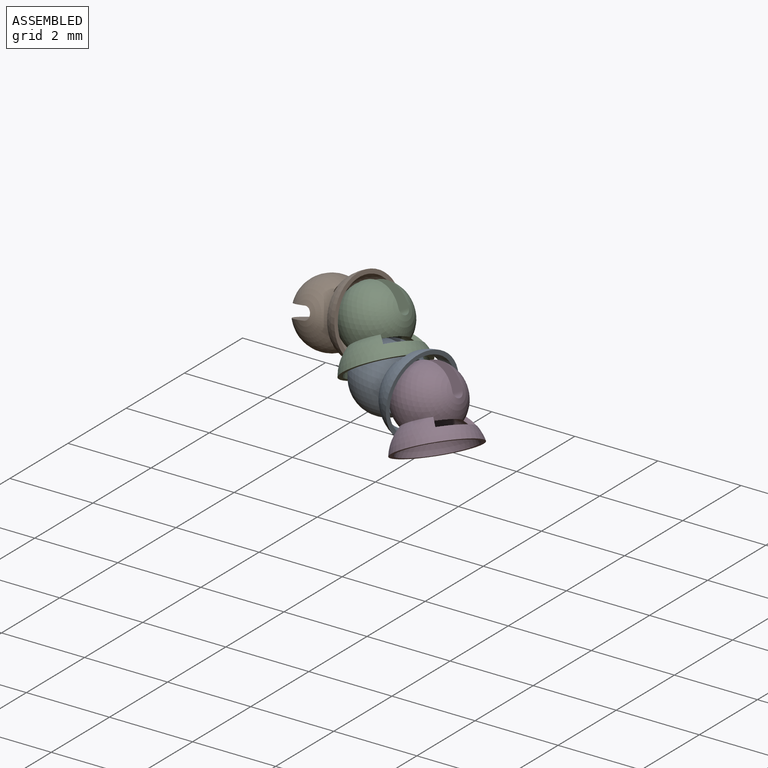
[diagram: assembled view]
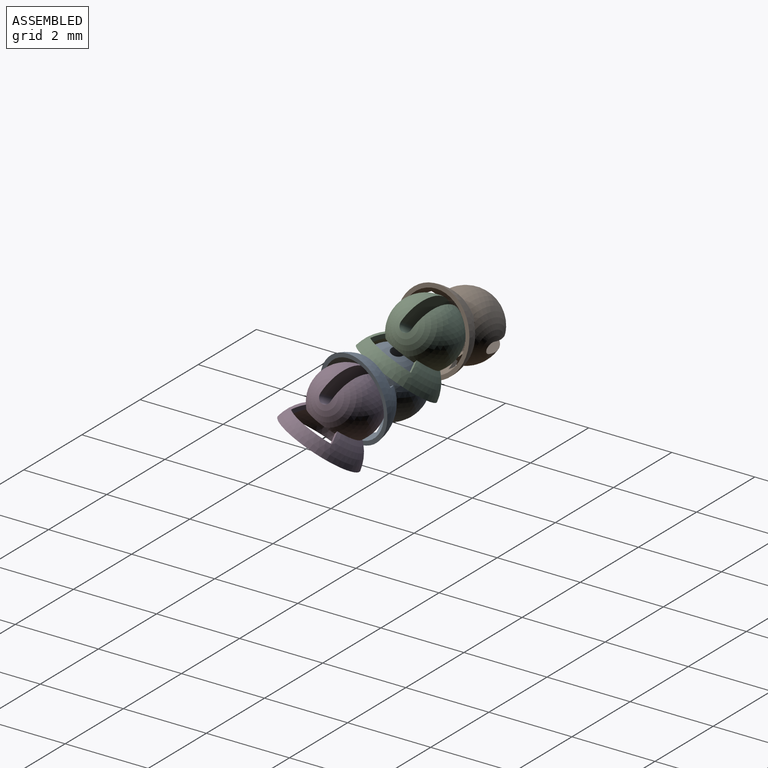
[diagram: assembled view, second angle]
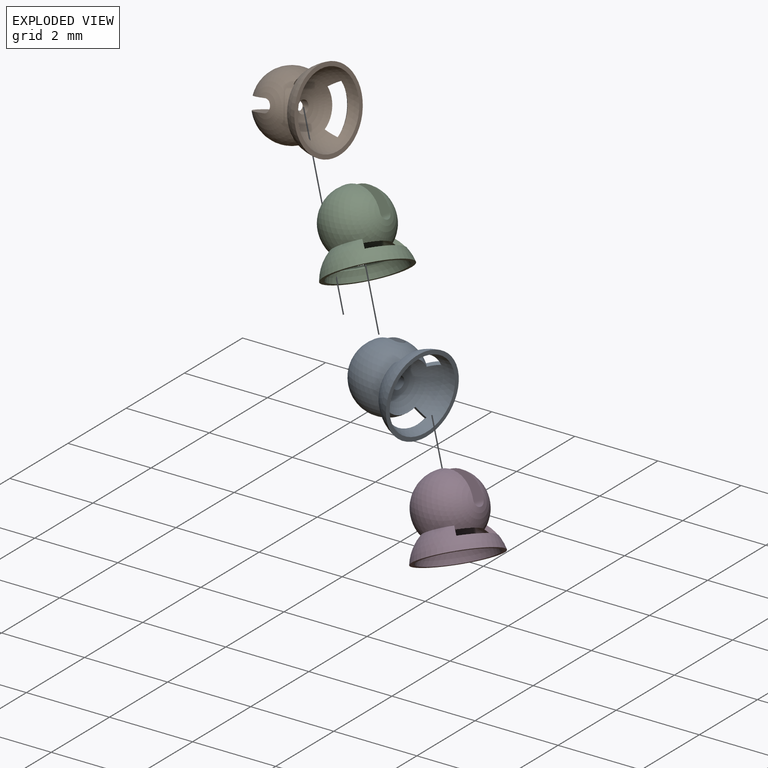
[diagram: exploded view]
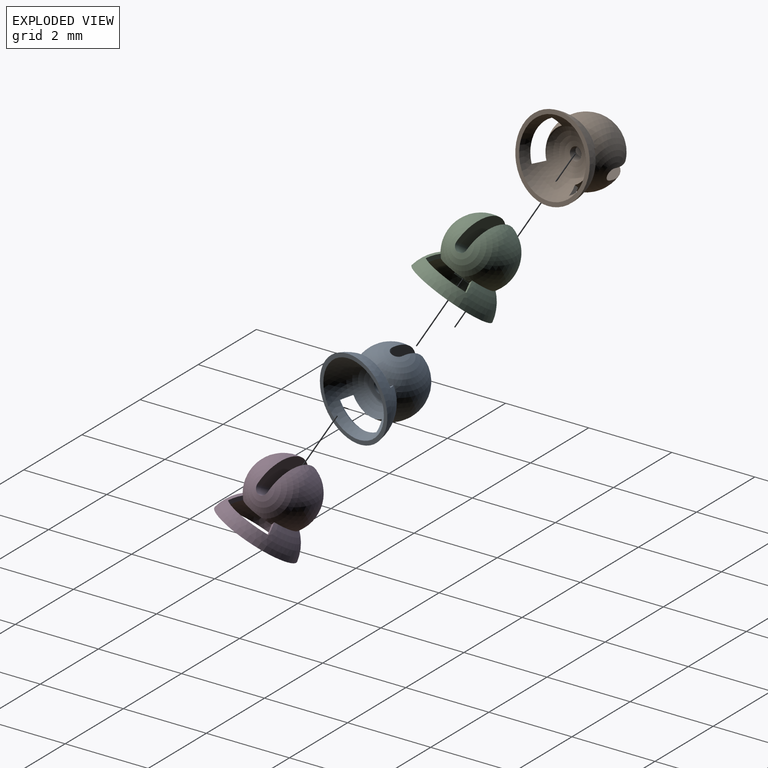
[diagram: exploded view, second angle]
ASSEMBLY  parts=4 mates=3
PART A: 15 faces, bbox 2x2x1.8 mm
  f0: sphere r=0.9mm, area 3.2mm2, adj f2,f3,f4,f9,f10,f11,f12,f13
  f1: sphere r=1mm, area 2.7mm2, adj f2,f3,f9,f10,f11,f12,f13,f14
  f2: sphere r=0.8mm, area 5.7mm2, adj f0,f1,f5,f6,f7,f8,f10,f11
  f3: plane 1.96x1.96mm, normal (0,0,-1), area 0.6mm2, adj f0,f1
  f4: cylinder r=0.15mm len=0.31mm, axis (0,0,-1), area 0.2mm2, adj f0,f7,f8
  f5: plane 1.57x0.79mm, normal (0,-1,0), area 1mm2, adj f2,f7,f8
  f6: plane 1.57x0.79mm, normal (0,1,0), area 1mm2, adj f2,f7,f8
  f7: cylinder r=0.15mm len=0.79mm, axis (1,0,0), area 0.3mm2, adj f2,f4,f5,f6
  f8: cylinder r=0.15mm len=0.79mm, axis (1,0,0), area 0.3mm2, adj f2,f4,f5,f6
  f9: sphere r=1.1mm, area 0.1mm2, adj f0,f1,f10,f11
  f10: plane 0.32x0.18mm, normal (-0.71,0.71,0), area 0mm2, adj f0,f1,f2,f9
  f11: plane 0.32x0.18mm, normal (-0.71,-0.71,0), area 0mm2, adj f0,f1,f2,f9
  f12: sphere r=1.1mm, area 0.1mm2, adj f0,f1,f13,f14
  f13: plane 0.32x0.18mm, normal (0.71,-0.71,0), area 0mm2, adj f0,f1,f2,f12
  f14: plane 0.32x0.18mm, normal (0.71,0.71,0), area 0mm2, adj f0,f1,f2,f12
PART B: same geometry as A
PART C: same geometry as A
PART D: same geometry as A
PLACE A rot(axis=(0.66,-0.18,-0.73),176.1deg) t=(-1.77,4.4,10.44)mm
PLACE B rot(axis=(-0.72,-0.45,0.53),132.4deg) t=(-3.53,4.97,11.15)mm
PLACE C rot(axis=(-0.53,-0.83,-0.15),37.7deg) t=(-2.36,4.82,11.4)mm
PLACE D rot(axis=(-0.24,0.17,0.96),173.9deg) t=(-0.6,4.14,10.37)mm
MATE ball C.f4 <-> B.f4  axis (-0.49,0.35,0.8) through (-2.36,4.82,11.4)mm
MATE ball D.f4 <-> A.f4  axis (-0.44,0.35,0.83) through (-0.6,4.14,10.37)mm
MATE ball C.f4 <-> A.f4  axis (-0.49,0.35,0.8) through (-1.77,4.4,10.44)mm
